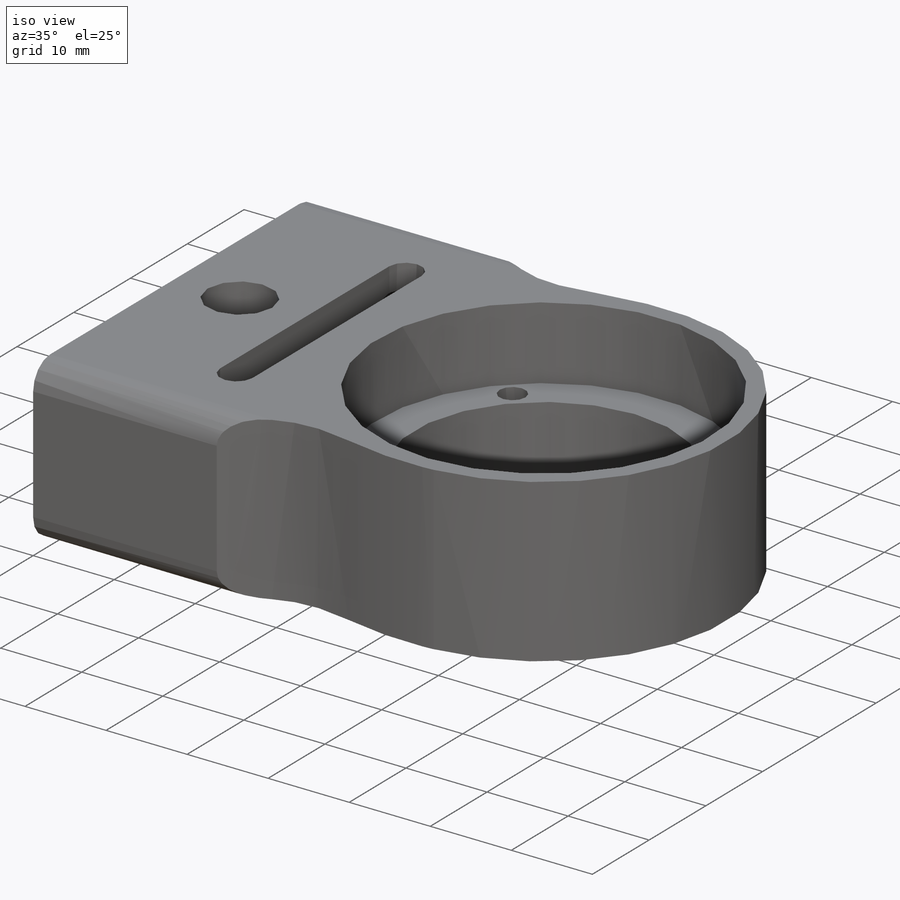
[diagram: iso view]
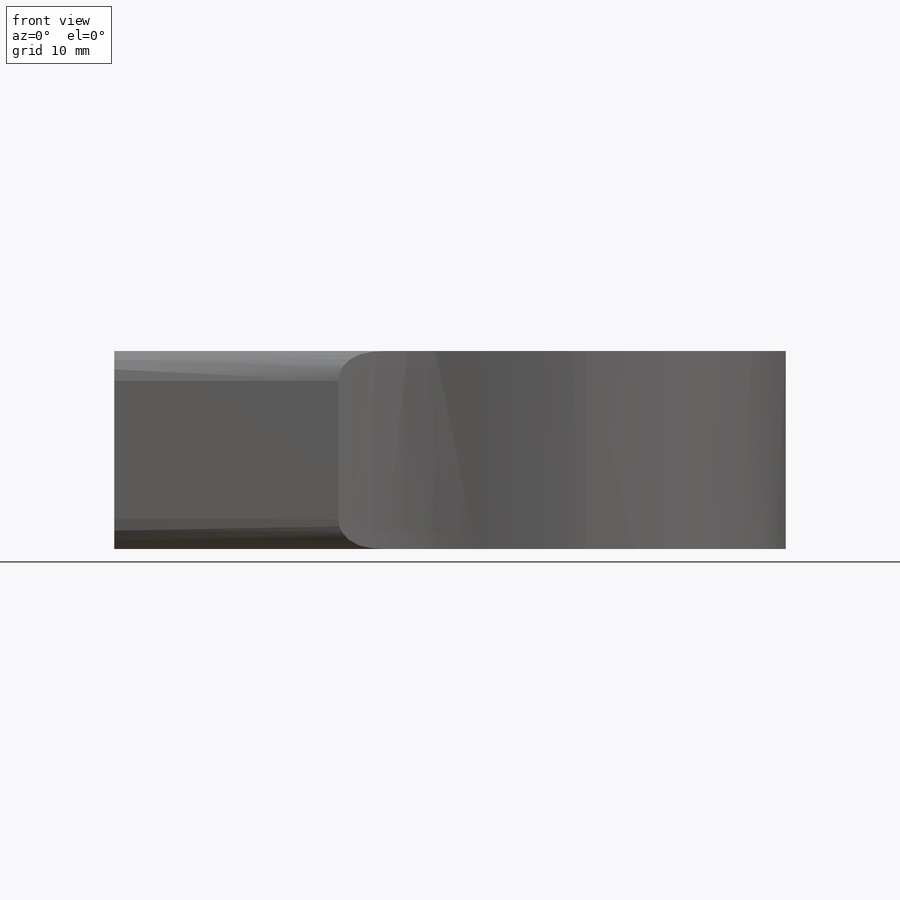
[diagram: front view]
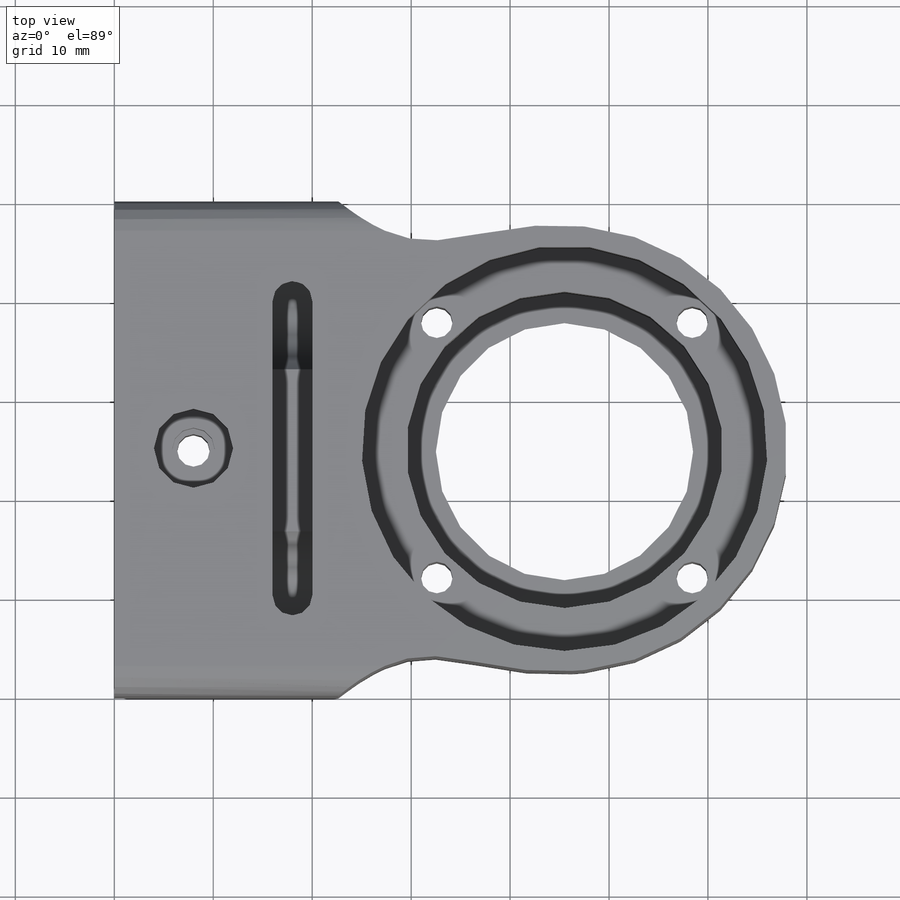
[diagram: top view]
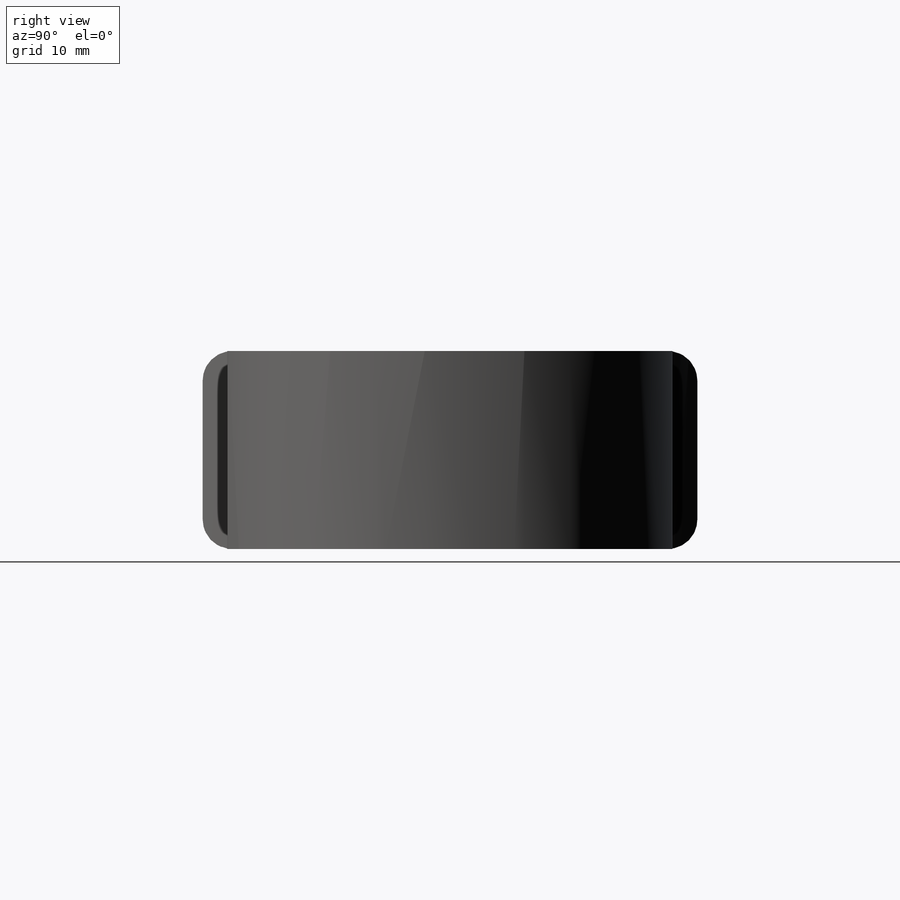
[diagram: right view]
SOLIDWORKS PART (.sldprt)
format: sldprt  version: not decoded by parser v0  size: 488,448 bytes
history: native  units: mm
features: sketch x17, cut_extrude x7, hole x3, extrude x2, material x1, fillet x1, thread x1 (+11 scaffold rows collapsed)
feature tree (43):
  scaffold x11  (default folders/planes/origin — collapsed)
  material  "3.1355 (EN-AW 2024)"
  sketch  "Эскиз1"  dims[D3=45.0mm D1=50.0mm D2=20.0mm D4=25.5mm]
  extrude  "Бобышка-Вытянуть1"  Depth=20mm
  sketch  "Эскиз2"  dims[D2=14.0mm D1=29.8mm]
  cut_extrude  "Вырез-Вытянуть1"  Depth=20mm
  sketch  "Эскиз3"  dims[D1=26.0mm]
  cut_extrude  "Вырез-Вытянуть2"  [1 undecoded]
  sketch  "Эскиз4"  dims[D1=32.0mm]
  cut_extrude  "Вырез-Вытянуть3"  Depth=1mm
  sketch  "Эскиз5"  dims[D2=45.0mm D1=3.0mm]
  cut_extrude  "Вырез-Вытянуть9"  [1 undecoded]
  sketch  "Эскиз6"
  extrude  "Бобышка-Вытянуть4"  [1 undecoded]
  fillet  "Скругление2"  Radius=3mm
  sketch  "Эскиз7"  dims[D1=41.0mm]
  cut_extrude  "Вырез-Вытянуть10"  Depth=10mm
  sketch  "Эскиз8"  dims[D1=2.0mm D2=2.0mm]
  cut_extrude  "Вырез-Вытянуть11"  [1 undecoded]
  sketch  "Эскиз9"  dims[D1=18.0mm D2=29.8mm D3=4.0mm]
  cut_extrude  "Вырез-Вытянуть12"  Depth=10mm
  sketch  "Эскиз10"
  hole  "Цековка для винта с внутренним шестигранником M41"  [1 undecoded]
  sketch  "Эскиз12"
  sketch  "Эскиз11"  dims[hole-wizard template sketch: 41 standard entries collapsed; hole parameters kept: c12.Диаметр сквозного отверстия=4.3mm c12.Глубина сквозного отверстия=8.0mm c12.Диаметр цековки=8.0mm c12.Глубина цековки=4.5mm]
  hole  "Отверстие обработанное метчиком M4x0.71"  [1 undecoded]
  sketch  "Эскиз14"
  sketch  "Эскиз13"  dims[hole-wizard template sketch: 60 standard entries collapsed; hole parameters kept: c18.Глубина проходного сверла=8.0mm]
  thread  "Отверстие резьбы1"  Diameter=4mm  [1 undecoded]
  sketch  "Эскиз15"  dims[c1.D1=36.5mm c1.D2=16.0mm c2.D2=45.0deg c2.D3=4.0]
  hole  "Отверстие с зазором M31"  [1 undecoded]
  sketch  "Эскиз17"
  sketch  "Эскиз16"  dims[hole-wizard template sketch: 59 standard entries collapsed; hole parameters kept: c18.Диаметр сквозного отверстия=3.2mm c18.Глубина сквозного отверстия=11.0mm]
decode coverage: 19 of 31 modeling features carry decoded parameters
note: ~ marks probable driven/reference dimensions
note: 8 parameter values undecoded
summary: no parameter record found for 7 features
note: suppression state not decoded; provenance and decode notes live in map.json
